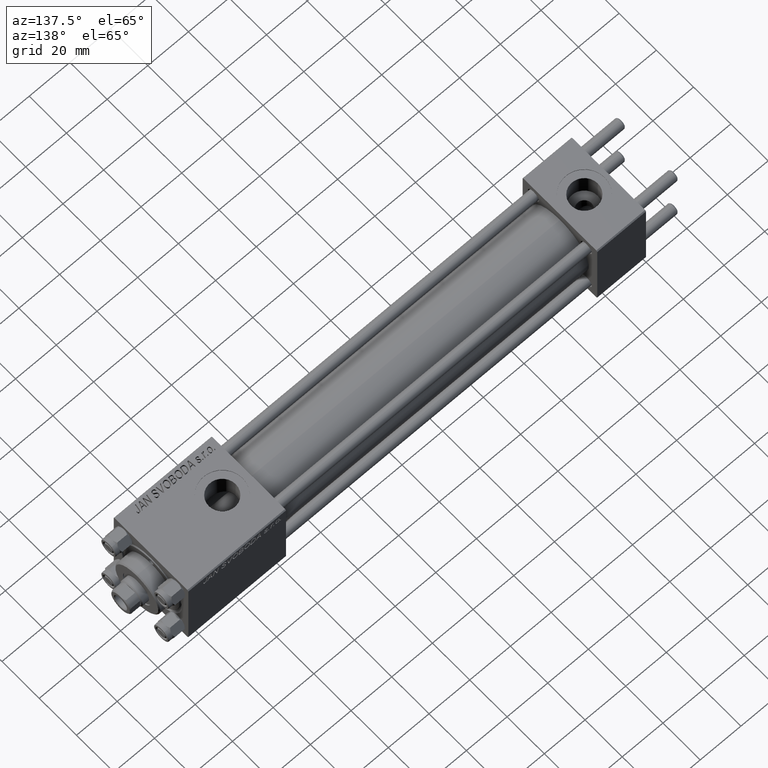
[diagram: clean part render]
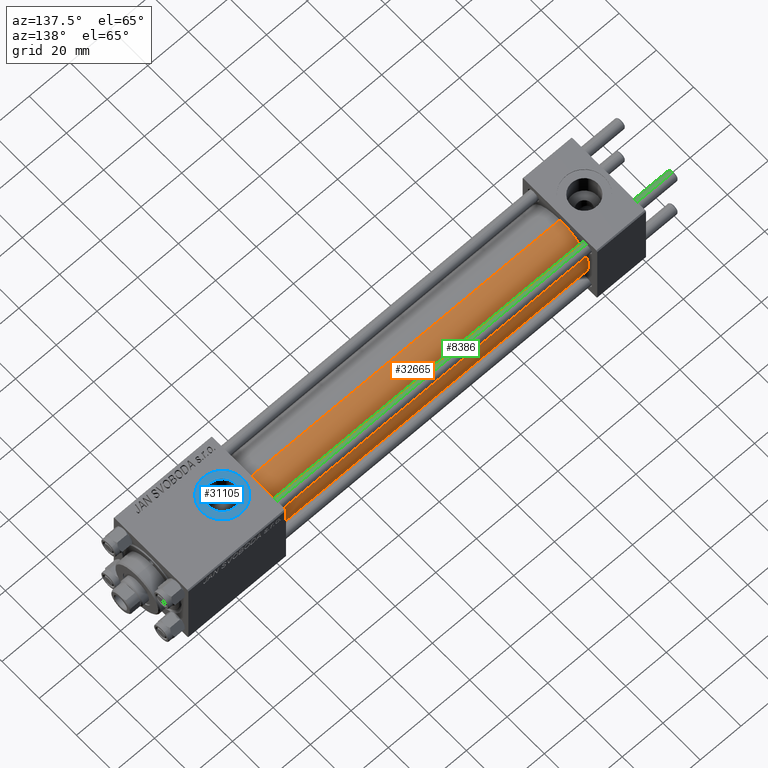
[diagram: same view with three faces highlighted in distinct colors, each labeled with its STEP entity id]
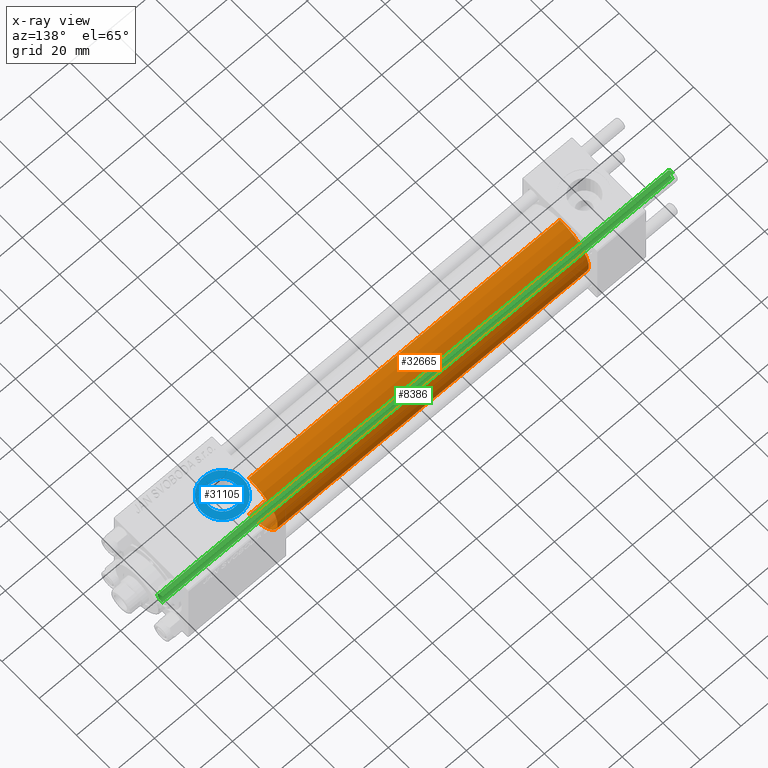
[diagram: x-ray of the same camera — body ghosted, the three highlighted faces saturated]
A machine part, auxiliary view with three faces highlighted in distinct colors.
The next image is the same camera in x-ray (body ghosted, the three faces saturated) — at least one of them is partly hidden behind the body in this view.
Their STEP definitions:

[orange] entity #32665 — the highlighted cylindrical surface (partial cylindrical patch) has radius 15.5 mm, axis along (-1, -0, -0).
#581 = VECTOR ( 'NONE', #7067, 1000.000000000000000 ) ;
#808 = ORIENTED_EDGE ( 'NONE', *, *, #13645, .T. ) ;
#1672 = VECTOR ( 'NONE', #18883, 1000.000000000000000 ) ;
#4405 = CARTESIAN_POINT ( 'NONE',  ( 177.0000000000000000, 1.898202538678397557E-15, -15.50000000000000000 ) ) ;
#4747 = CIRCLE ( 'NONE', #28133, 15.50000000000000000 ) ;
#4828 = CYLINDRICAL_SURFACE ( 'NONE', #28437, 15.50000000000000000 ) ;
#5369 = EDGE_CURVE ( 'NONE', #12026, #42374, #15397, .T. ) ;
#6311 = LINE ( 'NONE', #11082, #1672 ) ;
#7067 = DIRECTION ( 'NONE',  ( -1.000000000000000000, -0.000000000000000000, -0.000000000000000000 ) ) ;
#7942 = CARTESIAN_POINT ( 'NONE',  ( 23.99999999999999289, 1.898202538678397557E-15, -15.50000000000000000 ) ) ;
#8786 = EDGE_CURVE ( 'NONE', #12026, #42153, #4747, .T. ) ;
#10024 = DIRECTION ( 'NONE',  ( 0.000000000000000000, 0.000000000000000000, 1.000000000000000000 ) ) ;
#10076 = DIRECTION ( 'NONE',  ( 0.000000000000000000, 0.000000000000000000, -1.000000000000000000 ) ) ;
#11082 = CARTESIAN_POINT ( 'NONE',  ( 177.0000000000000000, 0.000000000000000000, 15.50000000000000000 ) ) ;
#12026 = VERTEX_POINT ( 'NONE', #4405 ) ;
#13645 = EDGE_CURVE ( 'NONE', #42374, #32428, #41944, .T. ) ;
#15397 = LINE ( 'NONE', #49700, #581 ) ;
#18588 = EDGE_LOOP ( 'NONE', ( #25068, #36158, #808, #35181 ) ) ;
#18883 = DIRECTION ( 'NONE',  ( -1.000000000000000000, -0.000000000000000000, -0.000000000000000000 ) ) ;
#19721 = DIRECTION ( 'NONE',  ( -1.000000000000000000, -0.000000000000000000, -0.000000000000000000 ) ) ;
#23000 = DIRECTION ( 'NONE',  ( 0.000000000000000000, 0.000000000000000000, 1.000000000000000000 ) ) ;
#25068 = ORIENTED_EDGE ( 'NONE', *, *, #8786, .F. ) ;
#26791 = CARTESIAN_POINT ( 'NONE',  ( 177.0000000000000000, 0.000000000000000000, 0.000000000000000000 ) ) ;
#27468 = AXIS2_PLACEMENT_3D ( 'NONE', #30165, #41774, #10024 ) ;
#28133 = AXIS2_PLACEMENT_3D ( 'NONE', #48423, #32793, #10076 ) ;
#28429 = EDGE_CURVE ( 'NONE', #42153, #32428, #6311, .T. ) ;
#28437 = AXIS2_PLACEMENT_3D ( 'NONE', #26791, #19721, #23000 ) ;
#30165 = CARTESIAN_POINT ( 'NONE',  ( 23.99999999999999289, 0.000000000000000000, 0.000000000000000000 ) ) ;
#32428 = VERTEX_POINT ( 'NONE', #33929 ) ;
#32665 = ADVANCED_FACE ( 'NONE', ( #34618 ), #4828, .T. ) ;
#32793 = DIRECTION ( 'NONE',  ( 1.000000000000000000, 0.000000000000000000, 0.000000000000000000 ) ) ;
#33929 = CARTESIAN_POINT ( 'NONE',  ( 23.99999999999999289, 0.000000000000000000, 15.50000000000000000 ) ) ;
#34618 = FACE_OUTER_BOUND ( 'NONE', #18588, .T. ) ;
#35181 = ORIENTED_EDGE ( 'NONE', *, *, #28429, .F. ) ;
#36158 = ORIENTED_EDGE ( 'NONE', *, *, #5369, .T. ) ;
#41774 = DIRECTION ( 'NONE',  ( 1.000000000000000000, 0.000000000000000000, 0.000000000000000000 ) ) ;
#41944 = CIRCLE ( 'NONE', #27468, 15.50000000000000000 ) ;
#42153 = VERTEX_POINT ( 'NONE', #43072 ) ;
#42374 = VERTEX_POINT ( 'NONE', #7942 ) ;
#43072 = CARTESIAN_POINT ( 'NONE',  ( 177.0000000000000000, 0.000000000000000000, 15.50000000000000000 ) ) ;
#48423 = CARTESIAN_POINT ( 'NONE',  ( 177.0000000000000000, 0.000000000000000000, 0.000000000000000000 ) ) ;
#49700 = CARTESIAN_POINT ( 'NONE',  ( 177.0000000000000000, 1.898202538678397557E-15, -15.50000000000000000 ) ) ;

[blue] entity #31105 — the highlighted planar face has unit normal (0, 0, 1).
#214 = CIRCLE ( 'NONE', #28463, 10.00000000000000888 ) ;
#4151 = ORIENTED_EDGE ( 'NONE', *, *, #34623, .T. ) ;
#4672 = CIRCLE ( 'NONE', #8733, 6.580000000000002736 ) ;
#5897 = VERTEX_POINT ( 'NONE', #41636 ) ;
#6696 = CARTESIAN_POINT ( 'NONE',  ( 190.0000000000000000, -1.734723475976806897E-15, 19.80000000000000071 ) ) ;
#7117 = EDGE_CURVE ( 'NONE', #9137, #46040, #4672, .T. ) ;
#7944 = PLANE ( 'NONE',  #42068 ) ;
#8199 = FACE_OUTER_BOUND ( 'NONE', #21228, .T. ) ;
#8445 = DIRECTION ( 'NONE',  ( 0.000000000000000000, 0.000000000000000000, 1.000000000000000000 ) ) ;
#8733 = AXIS2_PLACEMENT_3D ( 'NONE', #47619, #20876, #32730 ) ;
#9137 = VERTEX_POINT ( 'NONE', #16846 ) ;
#9167 = CARTESIAN_POINT ( 'NONE',  ( 180.0000000000000000, -5.100766768294525560E-16, 19.80000000000000071 ) ) ;
#9449 = ORIENTED_EDGE ( 'NONE', *, *, #7117, .T. ) ;
#11266 = AXIS2_PLACEMENT_3D ( 'NONE', #6696, #22080, #33688 ) ;
#11434 = EDGE_CURVE ( 'NONE', #46040, #9137, #28206, .T. ) ;
#14742 = CARTESIAN_POINT ( 'NONE',  ( 190.0000000000000000, -1.734723475976806897E-15, 19.80000000000000071 ) ) ;
#16846 = CARTESIAN_POINT ( 'NONE',  ( 183.4199999999999875, -1.734723475976806897E-15, 19.80000000000000071 ) ) ;
#17763 = AXIS2_PLACEMENT_3D ( 'NONE', #44962, #41424, #22004 ) ;
#17988 = ORIENTED_EDGE ( 'NONE', *, *, #27564, .T. ) ;
#18466 = ORIENTED_EDGE ( 'NONE', *, *, #11434, .T. ) ;
#20876 = DIRECTION ( 'NONE',  ( -0.000000000000000000, -0.000000000000000000, -1.000000000000000000 ) ) ;
#21228 = EDGE_LOOP ( 'NONE', ( #4151, #17988 ) ) ;
#21686 = VERTEX_POINT ( 'NONE', #9167 ) ;
#22004 = DIRECTION ( 'NONE',  ( 1.000000000000000000, 0.000000000000000000, 0.000000000000000000 ) ) ;
#22080 = DIRECTION ( 'NONE',  ( -0.000000000000000000, -0.000000000000000000, -1.000000000000000000 ) ) ;
#23406 = CIRCLE ( 'NONE', #17763, 10.00000000000000888 ) ;
#23591 = DIRECTION ( 'NONE',  ( 1.000000000000000000, 0.000000000000000000, -0.000000000000000000 ) ) ;
#23837 = CARTESIAN_POINT ( 'NONE',  ( 190.0000000000000000, -1.734723475976806897E-15, 19.80000000000000071 ) ) ;
#27564 = EDGE_CURVE ( 'NONE', #21686, #5897, #23406, .T. ) ;
#28206 = CIRCLE ( 'NONE', #11266, 6.580000000000002736 ) ;
#28463 = AXIS2_PLACEMENT_3D ( 'NONE', #14742, #37217, #48798 ) ;
#31105 = ADVANCED_FACE ( 'NONE', ( #34443, #8199 ), #7944, .T. ) ;
#31170 = CARTESIAN_POINT ( 'NONE',  ( 196.5800000000000125, -9.289058821378450943E-16, 19.80000000000000071 ) ) ;
#32730 = DIRECTION ( 'NONE',  ( 1.000000000000000000, 0.000000000000000000, 0.000000000000000000 ) ) ;
#33688 = DIRECTION ( 'NONE',  ( 1.000000000000000000, 0.000000000000000000, 0.000000000000000000 ) ) ;
#34443 = FACE_BOUND ( 'NONE', #47385, .T. ) ;
#34623 = EDGE_CURVE ( 'NONE', #5897, #21686, #214, .T. ) ;
#37217 = DIRECTION ( 'NONE',  ( 0.000000000000000000, 0.000000000000000000, 1.000000000000000000 ) ) ;
#41424 = DIRECTION ( 'NONE',  ( 0.000000000000000000, 0.000000000000000000, 1.000000000000000000 ) ) ;
#41636 = CARTESIAN_POINT ( 'NONE',  ( 200.0000000000000000, -1.734723475976806897E-15, 19.80000000000000071 ) ) ;
#42068 = AXIS2_PLACEMENT_3D ( 'NONE', #23837, #8445, #23591 ) ;
#44962 = CARTESIAN_POINT ( 'NONE',  ( 190.0000000000000000, -1.734723475976806897E-15, 19.80000000000000071 ) ) ;
#46040 = VERTEX_POINT ( 'NONE', #31170 ) ;
#47385 = EDGE_LOOP ( 'NONE', ( #9449, #18466 ) ) ;
#47619 = CARTESIAN_POINT ( 'NONE',  ( 190.0000000000000000, -1.734723475976806897E-15, 19.80000000000000071 ) ) ;
#48798 = DIRECTION ( 'NONE',  ( 1.000000000000000000, 0.000000000000000000, 0.000000000000000000 ) ) ;

[green] entity #8386 — the highlighted cylindrical surface (edge-blend (fillet) strip) has radius 2.5 mm, axis along (-1, -0, -0).
#1679 = VERTEX_POINT ( 'NONE', #21710 ) ;
#2681 = VERTEX_POINT ( 'NONE', #17995 ) ;
#2816 = VERTEX_POINT ( 'NONE', #22513 ) ;
#8004 = DIRECTION ( 'NONE',  ( 0.000000000000000000, 0.000000000000000000, -1.000000000000000000 ) ) ;
#8386 = ADVANCED_FACE ( 'NONE', ( #27118 ), #23844, .T. ) ;
#9774 = VECTOR ( 'NONE', #37578, 1000.000000000000000 ) ;
#9916 = VERTEX_POINT ( 'NONE', #24308 ) ;
#11194 = AXIS2_PLACEMENT_3D ( 'NONE', #42514, #43024, #16030 ) ;
#11543 = CARTESIAN_POINT ( 'NONE',  ( 0.000000000000000000, 0.000000000000000000, 251.5000000000000000 ) ) ;
#12187 = AXIS2_PLACEMENT_3D ( 'NONE', #32795, #40372, #28261 ) ;
#14670 = DIRECTION ( 'NONE',  ( -0.000000000000000000, -0.000000000000000000, -1.000000000000000000 ) ) ;
#14889 = EDGE_CURVE ( 'NONE', #2681, #1679, #41352, .T. ) ;
#16030 = DIRECTION ( 'NONE',  ( -1.000000000000000000, 0.000000000000000000, 0.000000000000000000 ) ) ;
#17995 = CARTESIAN_POINT ( 'NONE',  ( -2.500000000000000000, 0.000000000000000000, 251.5000000000000000 ) ) ;
#18946 = ORIENTED_EDGE ( 'NONE', *, *, #30635, .T. ) ;
#19250 = ORIENTED_EDGE ( 'NONE', *, *, #43643, .F. ) ;
#21710 = CARTESIAN_POINT ( 'NONE',  ( -2.500000000000000000, 0.000000000000000000, 0.5000000000000004441 ) ) ;
#22513 = CARTESIAN_POINT ( 'NONE',  ( 2.500000000000000000, 3.061616997868383141E-16, 0.5000000000000004441 ) ) ;
#23844 = CYLINDRICAL_SURFACE ( 'NONE', #11194, 2.500000000000000000 ) ;
#24308 = CARTESIAN_POINT ( 'NONE',  ( 2.500000000000000000, 3.061616997868383141E-16, 251.5000000000000000 ) ) ;
#25451 = EDGE_CURVE ( 'NONE', #1679, #2816, #29120, .T. ) ;
#27034 = VECTOR ( 'NONE', #14670, 1000.000000000000000 ) ;
#27118 = FACE_OUTER_BOUND ( 'NONE', #35898, .T. ) ;
#28261 = DIRECTION ( 'NONE',  ( 1.000000000000000000, 0.000000000000000000, 0.000000000000000000 ) ) ;
#29120 = CIRCLE ( 'NONE', #12187, 2.500000000000000000 ) ;
#30542 = ORIENTED_EDGE ( 'NONE', *, *, #14889, .T. ) ;
#30635 = EDGE_CURVE ( 'NONE', #9916, #2681, #42864, .T. ) ;
#30757 = AXIS2_PLACEMENT_3D ( 'NONE', #11543, #8004, #35769 ) ;
#32795 = CARTESIAN_POINT ( 'NONE',  ( 0.000000000000000000, 0.000000000000000000, 0.5000000000000004441 ) ) ;
#35769 = DIRECTION ( 'NONE',  ( 1.000000000000000000, 0.000000000000000000, 0.000000000000000000 ) ) ;
#35849 = ORIENTED_EDGE ( 'NONE', *, *, #25451, .T. ) ;
#35898 = EDGE_LOOP ( 'NONE', ( #19250, #18946, #30542, #35849 ) ) ;
#37578 = DIRECTION ( 'NONE',  ( -0.000000000000000000, -0.000000000000000000, -1.000000000000000000 ) ) ;
#40372 = DIRECTION ( 'NONE',  ( -0.000000000000000000, -0.000000000000000000, 1.000000000000000000 ) ) ;
#41352 = LINE ( 'NONE', #49666, #9774 ) ;
#41641 = LINE ( 'NONE', #44938, #27034 ) ;
#42514 = CARTESIAN_POINT ( 'NONE',  ( 0.000000000000000000, 0.000000000000000000, 252.0000000000000000 ) ) ;
#42864 = CIRCLE ( 'NONE', #30757, 2.500000000000000000 ) ;
#43024 = DIRECTION ( 'NONE',  ( -0.000000000000000000, -0.000000000000000000, -1.000000000000000000 ) ) ;
#43643 = EDGE_CURVE ( 'NONE', #9916, #2816, #41641, .T. ) ;
#44938 = CARTESIAN_POINT ( 'NONE',  ( 2.500000000000000000, 3.061616997868383141E-16, 252.0000000000000000 ) ) ;
#49666 = CARTESIAN_POINT ( 'NONE',  ( -2.500000000000000000, 0.000000000000000000, 252.0000000000000000 ) ) ;